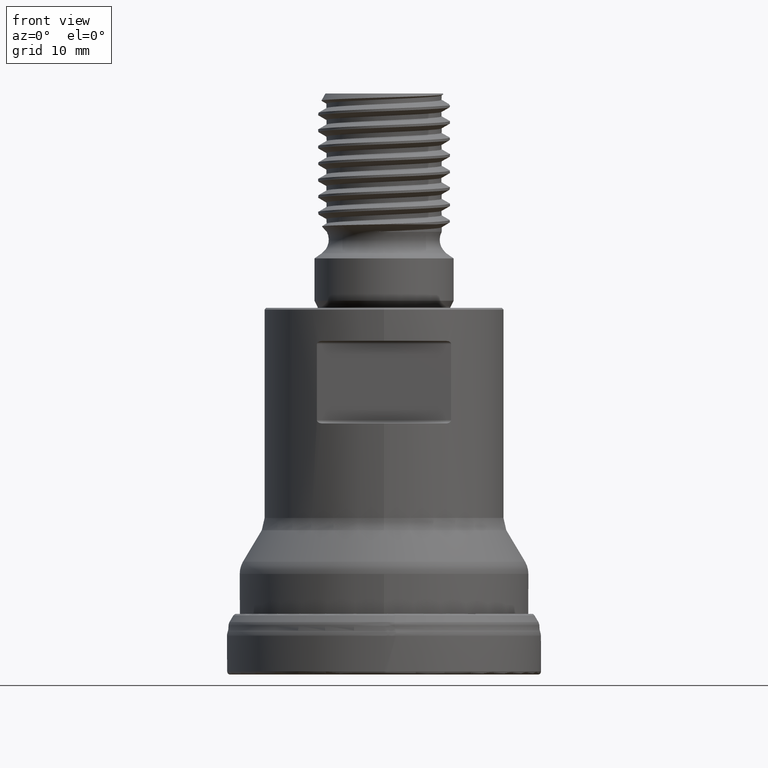
[diagram: clean part render]
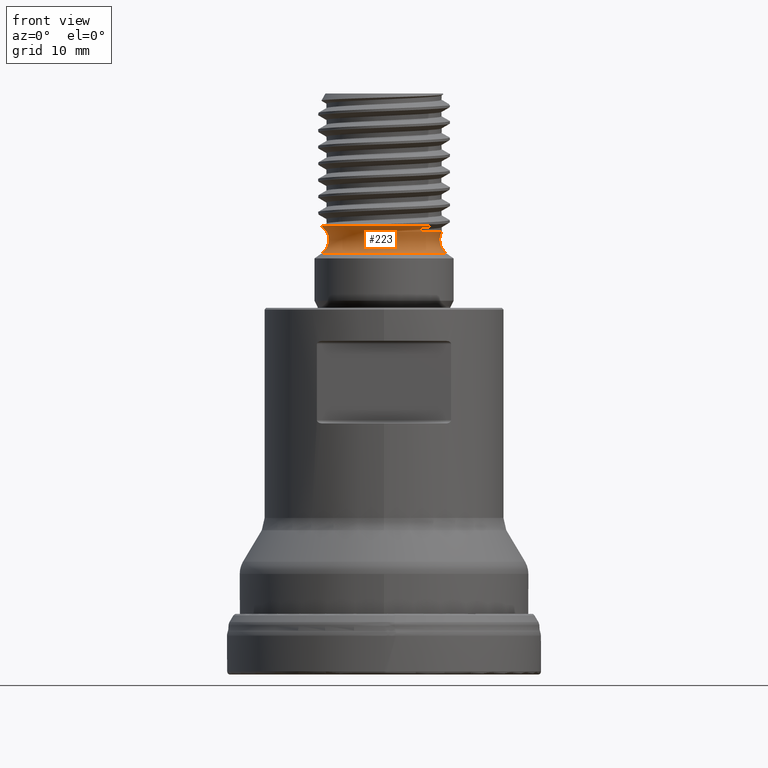
[diagram: same view with one face highlighted and labeled with its STEP entity id]
A machine part, front view. The second image highlights one B-rep face of the part: STEP entity #223.
In plain terms, the highlighted toroidal blend (fillet) surface has major radius 8.75 mm and minor (blend) radius 2 mm.
Its self-contained STEP definition (entity closure, byte-faithful):
#180=TOROIDAL_SURFACE('',#1063,8.75,1.99999999999999);
#223=ADVANCED_FACE('',(#358,#359),#180,.F.);
#358=FACE_BOUND('',#462,.T.);
#359=FACE_BOUND('',#463,.T.);
#462=EDGE_LOOP('',(#602,#603,#604,#605));
#463=EDGE_LOOP('',(#606));
#602=ORIENTED_EDGE('',*,*,#854,.F.);
#603=ORIENTED_EDGE('',*,*,#855,.T.);
#604=ORIENTED_EDGE('',*,*,#852,.F.);
#605=ORIENTED_EDGE('',*,*,#856,.T.);
#606=ORIENTED_EDGE('',*,*,#857,.T.);
#771=VERTEX_POINT('',#2083);
#772=VERTEX_POINT('',#2085);
#773=VERTEX_POINT('',#2092);
#774=VERTEX_POINT('',#2093);
#775=VERTEX_POINT('',#2119);
#852=EDGE_CURVE('',#771,#772,#928,.T.);
#854=EDGE_CURVE('',#773,#774,#929,.T.);
#855=EDGE_CURVE('',#773,#772,#996,.T.);
#856=EDGE_CURVE('',#771,#774,#997,.T.);
#857=EDGE_CURVE('',#775,#775,#930,.T.);
#928=CIRCLE('',#1059,7.75);
#929=CIRCLE('',#1061,7.);
#930=CIRCLE('',#1062,7.60284712729791);
#996=B_SPLINE_CURVE_WITH_KNOTS('',3,(#2094,#2095,#2096,#2097,#2098,#2099,
#2100,#2101,#2102,#2103,#2104,#2105,#2106,#2107),.UNSPECIFIED.,.F.,.F.,
(4,2,2,2,2,2,4),(0.,0.5,0.75,0.875,0.937500000000001,0.96875,1.),
 .UNSPECIFIED.);
#997=B_SPLINE_CURVE_WITH_KNOTS('',3,(#2108,#2109,#2110,#2111,#2112,#2113,
#2114,#2115,#2116,#2117),.UNSPECIFIED.,.F.,.F.,(4,2,2,2,4),(0.,0.25,0.5,
0.75,1.),.UNSPECIFIED.);
#1059=AXIS2_PLACEMENT_3D('',#2084,#1208,#1209);
#1061=AXIS2_PLACEMENT_3D('',#2091,#1212,#1213);
#1062=AXIS2_PLACEMENT_3D('',#2118,#1214,#1215);
#1063=AXIS2_PLACEMENT_3D('',#2120,#1216,#1217);
#1208=DIRECTION('',(1.17145536458252E-15,1.17145536458252E-15,1.));
#1209=DIRECTION('',(0.,1.,-8.95341148891255E-16));
#1212=DIRECTION('',(1.17145536458252E-15,1.17145536458252E-15,1.));
#1213=DIRECTION('',(1.,-1.76085023486833E-30,-9.91270557701033E-16));
#1214=DIRECTION('',(1.17145536458252E-15,1.17145536458252E-15,1.));
#1215=DIRECTION('',(0.,1.,-9.12670449336437E-16));
#1216=DIRECTION('',(1.17145536458252E-15,1.17145536458252E-15,1.));
#1217=DIRECTION('',(0.,1.,-1.29095700537809E-15));
#2083=CARTESIAN_POINT('',(-6.14141757892701,-4.72710166182672,54.4485481005394));
#2084=CARTESIAN_POINT('',(6.37840437661064E-14,6.37840437661064E-14,54.4485481005393));
#2085=CARTESIAN_POINT('',(6.09836291350777,-4.78251709616947,54.4485481005393));
#2091=CARTESIAN_POINT('',(6.28892803353137E-14,6.28892803353137E-14,53.6847431295223));
#2092=CARTESIAN_POINT('',(-0.934828873592552,-6.93729738277787,53.6847431295249));
#2093=CARTESIAN_POINT('',(6.99522109408452,0.258615244871098,53.6847431295228));
#2094=CARTESIAN_POINT('',(-0.934828873592712,-6.93729738277999,53.6847431295262));
#2095=CARTESIAN_POINT('',(0.323684355985358,-7.15397820051986,53.7690927731453));
#2096=CARTESIAN_POINT('',(1.62344548451437,-7.02905213276223,53.8584664557292));
#2097=CARTESIAN_POINT('',(3.41446826730963,-6.40043409574842,54.0141999475373));
#2098=CARTESIAN_POINT('',(3.99207771358778,-6.11516908512533,54.0709514137348));
#2099=CARTESIAN_POINT('',(4.79679884765042,-5.60844912830604,54.1679156289806));
#2100=CARTESIAN_POINT('',(5.05584292264359,-5.42563791685023,54.2022558519022));
#2101=CARTESIAN_POINT('',(5.43839961943924,-5.14457827482019,54.2655946521458));
#2102=CARTESIAN_POINT('',(5.56473114084612,-5.04941887529094,54.2884787775246));
#2103=CARTESIAN_POINT('',(5.75774692550008,-4.91388305077783,54.3308559646143));
#2104=CARTESIAN_POINT('',(5.82264043169193,-4.86957781626299,54.3462040976063));
#2105=CARTESIAN_POINT('',(5.95752947567024,-4.79317474061771,54.3845352251549));
#2106=CARTESIAN_POINT('',(6.04290573883138,-4.73935180464809,54.4079744027265));
#2107=CARTESIAN_POINT('',(6.09836291351147,-4.7825170961593,54.4485481005383));
#2108=CARTESIAN_POINT('',(-6.14141757892701,-4.72710166182672,54.4485481005394));
#2109=CARTESIAN_POINT('',(-7.48967741089812,-2.83926711634418,54.4005900956004));
#2110=CARTESIAN_POINT('',(-7.92016833345697,-0.366591212201138,54.3490893545753));
#2111=CARTESIAN_POINT('',(-6.66569800243494,4.03712535764277,54.2384988795431));
#2112=CARTESIAN_POINT('',(-4.95154903117964,5.93404357849523,54.1778269948948));
#2113=CARTESIAN_POINT('',(-0.676500618094867,7.57974573911476,54.0505417751433));
#2114=CARTESIAN_POINT('',(1.86250784262235,7.32634077986487,53.9827887785203));
#2115=CARTESIAN_POINT('',(5.71459845135312,4.7908319399697,53.8384282412162));
#2116=CARTESIAN_POINT('',(6.95336115975844,2.57801962008233,53.7640137608194));
#2117=CARTESIAN_POINT('',(6.99522109408453,0.258615244871098,53.6847431295228));
#2118=CARTESIAN_POINT('',(5.98358234424682E-14,5.98358234424682E-14,51.0781932043925));
#2119=CARTESIAN_POINT('',(5.98358234424682E-14,7.60284712729797,51.0781932043925));
#2120=CARTESIAN_POINT('',(6.17550235558504E-14,6.17550235558504E-14,52.7164972929705));